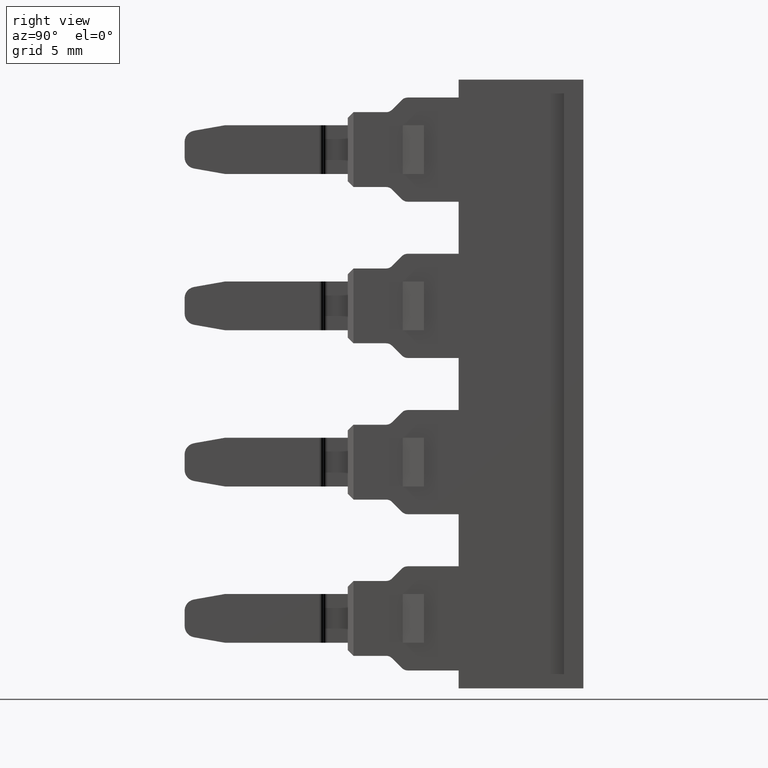
[diagram: clean part render]
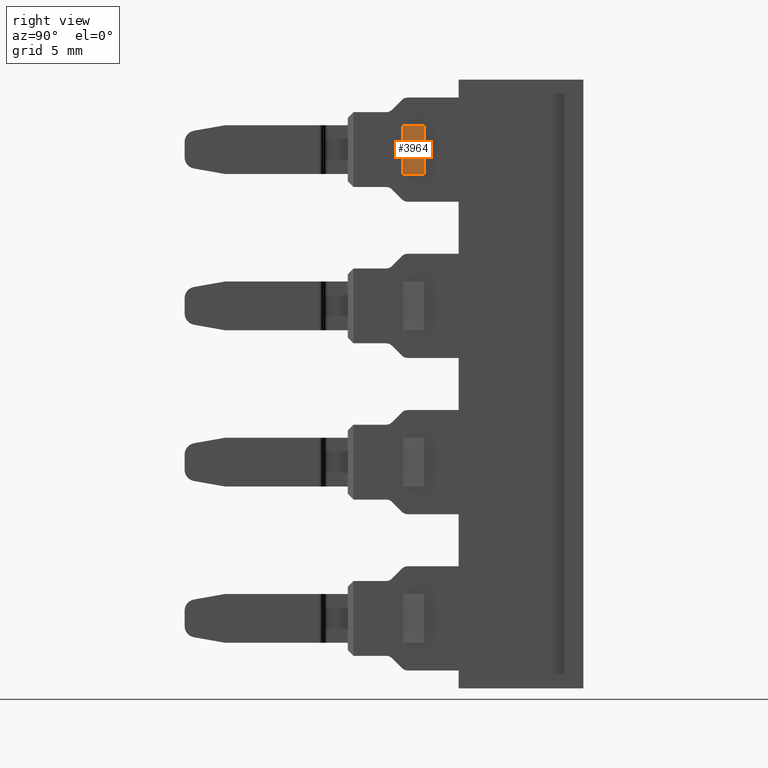
[diagram: same view with one face highlighted and labeled with its STEP entity id]
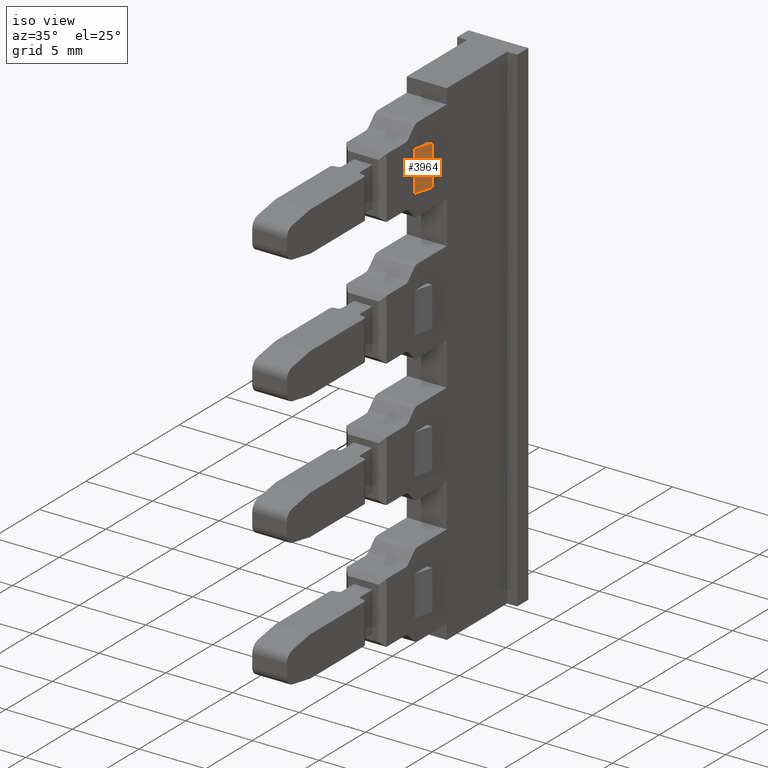
[diagram: same view with one face highlighted and labeled with its STEP entity id]
A machine part, right view. The second image highlights one B-rep face of the part: STEP entity #3964.
A second angle (iso view) of the same face is appended — the face is thin or edge-on in the first view.
In plain terms, the highlighted planar face has unit normal (0.9558, -0.2941, 0).
Its self-contained STEP definition (entity closure, byte-faithful):
#571 = EDGE_LOOP ( 'NONE', ( #817, #883, #807, #822 ) ) ;
#807 = ORIENTED_EDGE ( 'NONE', *, *, #3655, .T. ) ;
#817 = ORIENTED_EDGE ( 'NONE', *, *, #3696, .F. ) ;
#822 = ORIENTED_EDGE ( 'NONE', *, *, #3623, .T. ) ;
#883 = ORIENTED_EDGE ( 'NONE', *, *, #3893, .F. ) ;
#1506 = VERTEX_POINT ( 'NONE', #1816 ) ;
#1515 = VERTEX_POINT ( 'NONE', #1778 ) ;
#1723 = VERTEX_POINT ( 'NONE', #2038 ) ;
#1752 = VERTEX_POINT ( 'NONE', #2046 ) ;
#1778 = CARTESIAN_POINT ( 'NONE',  ( 112.2279176201151800, 239.2101602475987900, 49.60663662139501200 ) ) ;
#1816 = CARTESIAN_POINT ( 'NONE',  ( 112.2279176201151400, 239.2101602475986800, 52.60663662139501900 ) ) ;
#2038 = CARTESIAN_POINT ( 'NONE',  ( 112.6279176201150600, 240.5101602475986600, 52.60663662139501900 ) ) ;
#2046 = CARTESIAN_POINT ( 'NONE',  ( 112.6279176201150600, 240.5101602475986600, 49.60663662139501200 ) ) ;
#2891 = DIRECTION ( 'NONE',  ( 0.0000000000000000000, 0.0000000000000000000, 1.000000000000000000 ) ) ;
#2911 = LINE ( 'NONE', #2917, #5663 ) ;
#2917 = CARTESIAN_POINT ( 'NONE',  ( 112.2279176201151400, 239.2101602475986800, 49.60663662139501200 ) ) ;
#3233 = DIRECTION ( 'NONE',  ( 0.9557790087219675300, -0.2940858488374665200, 0.0000000000000000000 ) ) ;
#3236 = FACE_OUTER_BOUND ( 'NONE', #571, .T. ) ;
#3237 = DIRECTION ( 'NONE',  ( 0.2940858488374664700, 0.9557790087219674200, 0.0000000000000000000 ) ) ;
#3240 = PLANE ( 'NONE',  #5772 ) ;
#3261 = CARTESIAN_POINT ( 'NONE',  ( 112.2279176201151400, 239.2101602475986800, 49.60663662139501200 ) ) ;
#3623 = EDGE_CURVE ( 'NONE', #1752, #1723, #4211, .T. ) ;
#3655 = EDGE_CURVE ( 'NONE', #1515, #1752, #4283, .T. ) ;
#3696 = EDGE_CURVE ( 'NONE', #1506, #1723, #4410, .T. ) ;
#3893 = EDGE_CURVE ( 'NONE', #1515, #1506, #2911, .T. ) ;
#3964 = ADVANCED_FACE ( 'NONE', ( #3236 ), #3240, .T. ) ;
#4200 = DIRECTION ( 'NONE',  ( 0.0000000000000000000, 0.0000000000000000000, 1.000000000000000000 ) ) ;
#4211 = LINE ( 'NONE', #4223, #5350 ) ;
#4223 = CARTESIAN_POINT ( 'NONE',  ( 112.6279176201150600, 240.5101602475986600, 49.60663662139501200 ) ) ;
#4283 = LINE ( 'NONE', #4355, #5358 ) ;
#4335 = DIRECTION ( 'NONE',  ( 0.2940858488374664100, 0.9557790087219674200, 0.0000000000000000000 ) ) ;
#4355 = CARTESIAN_POINT ( 'NONE',  ( 112.2279176201151400, 239.2101602475986800, 49.60663662139501200 ) ) ;
#4410 = LINE ( 'NONE', #4444, #5431 ) ;
#4429 = DIRECTION ( 'NONE',  ( 0.2940858488374664100, 0.9557790087219674200, 0.0000000000000000000 ) ) ;
#4444 = CARTESIAN_POINT ( 'NONE',  ( 112.2279176201151400, 239.2101602475986800, 52.60663662139501900 ) ) ;
#5350 = VECTOR ( 'NONE', #4200, 1000.000000000000000 ) ;
#5358 = VECTOR ( 'NONE', #4335, 1000.000000000000100 ) ;
#5431 = VECTOR ( 'NONE', #4429, 1000.000000000000100 ) ;
#5663 = VECTOR ( 'NONE', #2891, 1000.000000000000000 ) ;
#5772 = AXIS2_PLACEMENT_3D ( 'NONE', #3261, #3233, #3237 ) ;